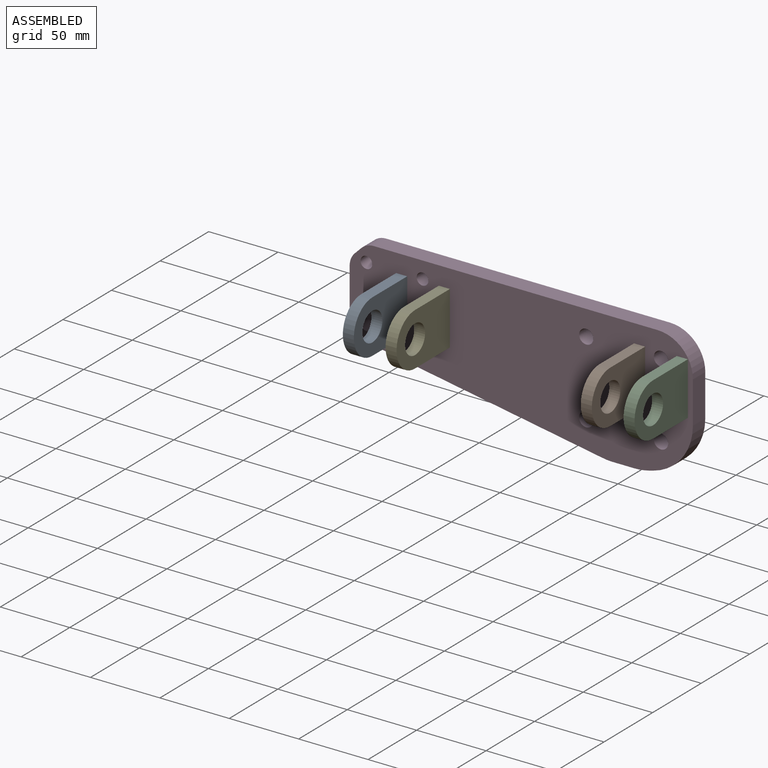
[diagram: assembled view]
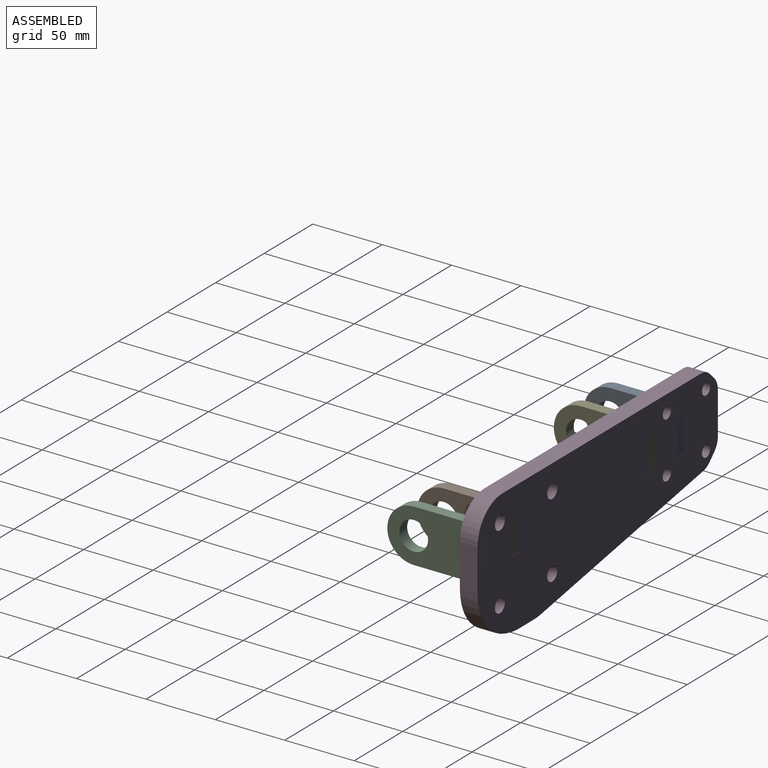
[diagram: assembled view, second angle]
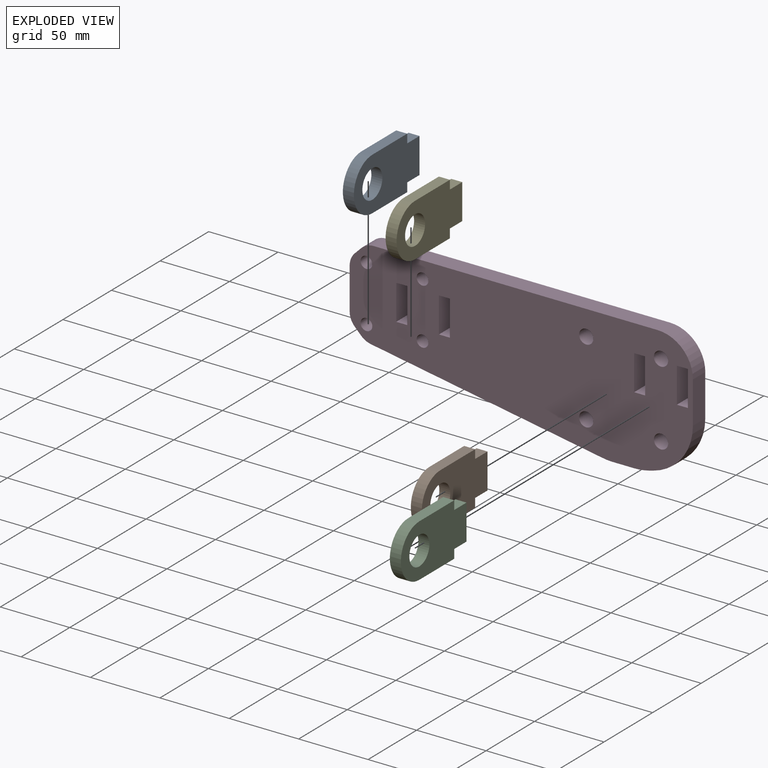
[diagram: exploded view]
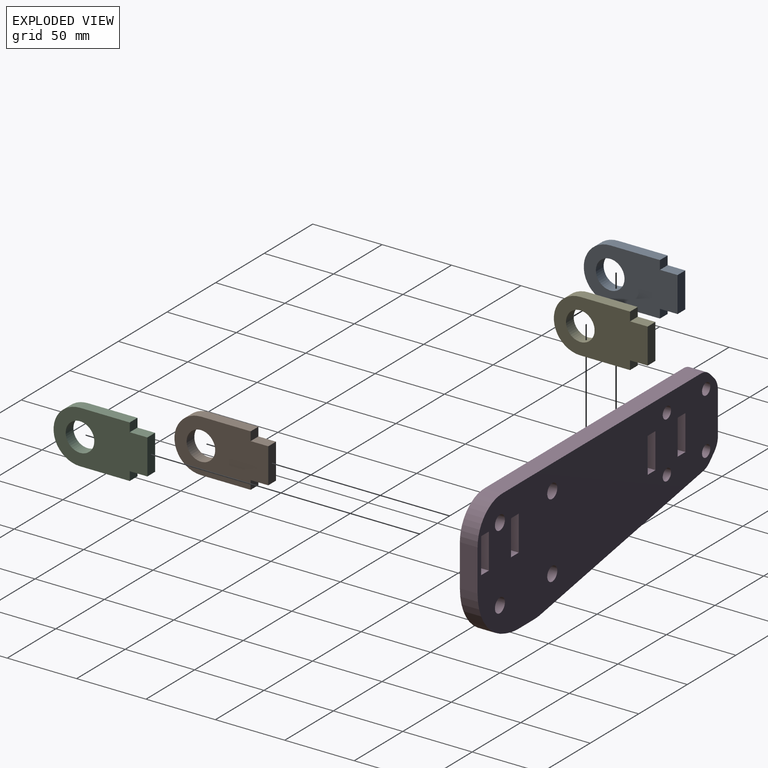
[diagram: exploded view, second angle]
ASSEMBLY  parts=5 mates=4
PART A: 11 faces, bbox 7.9x67.6x38.1 mm
  f0: plane 12.7x7.94mm, normal (0,0,-1), area 100.8mm2, adj f5,f6,f8,f10
  f1: plane 12.7x7.94mm, normal (0,0,1), area 100.8mm2, adj f5,f6,f8,f9
  f2: plane 35.84x7.94mm, normal (0,0,1), area 284.5mm2, adj f3,f5,f6,f9
  f3: cylinder r=19.05mm len=38.1mm, axis (-1,0,0), area 475mm2, adj f2,f4,f5,f6
  f4: plane 35.84x7.94mm, normal (0,0,-1), area 284.5mm2, adj f3,f5,f6,f10
  f5: plane 67.59x38.1mm, normal (1,0,0), area 1924.2mm2, adj f0,f1,f2,f3,f4,f7,f8,f9
  f6: plane 67.59x38.1mm, normal (-1,0,0), area 1924.2mm2, adj f0,f1,f2,f3,f4,f7,f8,f9
  f7: cylinder r=10.31mm len=20.63mm, axis (-1,0,0), area 514.3mm2, adj f5,f6
  f8: plane 25.4x7.94mm, normal (0,1,0), area 201.6mm2, adj f0,f1,f5,f6
  f9: plane 7.94x6.35mm, normal (0,1,0), area 50.4mm2, adj f1,f2,f5,f6
  f10: plane 7.94x6.35mm, normal (0,1,0), area 50.4mm2, adj f0,f4,f5,f6
PART B: same geometry as A
PART C: same geometry as A
PART D: 44 faces, bbox 247.4x12.7x94.5 mm
  f0: plane 247.35x94.53mm, normal (0,-1,0), area 18351.1mm2, adj f2,f3,f4,f5,f6,f7,f8,f9
  f1: plane 247.35x94.53mm, normal (0,1,0), area 18351.1mm2, adj f2,f3,f4,f5,f6,f7,f8,f9
  f2: plane 204.6x12.74mm, normal (0,0,1), area 2607mm2, adj f0,f1,f4,f43
  f3: plane 12.74x2.84mm, normal (0.25,0,-0.97), area 37.3mm2, adj f0,f1,f14,f42
  f4: cylinder r=12.7mm len=12.74mm, axis (0,1,0), area 127.1mm2, adj f0,f1,f2,f5
  f5: plane 12.74x4.66mm, normal (-0.71,0,0.71), area 83.9mm2, adj f0,f1,f4,f6
  f6: cylinder r=12.7mm len=12.74mm, axis (0,1,0), area 127.1mm2, adj f0,f1,f5,f7
  f7: plane 29.89x12.74mm, normal (-1,0,0), area 380.9mm2, adj f0,f1,f6,f8
  f8: cylinder r=12.7mm len=12.74mm, axis (0,1,0), area 127.1mm2, adj f0,f1,f7,f9
  f9: plane 12.74x4.66mm, normal (-0.71,0,-0.71), area 83.9mm2, adj f0,f1,f8,f10
  f10: cylinder r=12.7mm len=12.74mm, axis (0,1,0), area 98.9mm2, adj f0,f1,f9,f11
  f11: plane 167.08x29.46mm, normal (-0.17,0,-0.98), area 2161.8mm2, adj f0,f1,f10,f12
  f12: cylinder r=43.18mm len=12.74mm, axis (0,1,0), area 96.6mm2, adj f0,f1,f11,f13
  f13: plane 15.24x12.74mm, normal (0,0,-1), area 194.2mm2, adj f0,f1,f12,f14
  f14: cylinder r=43.18mm len=12.74mm, axis (0,1,0), area 138.8mm2, adj f0,f1,f3,f13
  f15: cylinder r=4.24mm len=12.74mm, axis (0,1,0), area 339.6mm2, adj f0,f1
  f16: cylinder r=4.24mm len=12.74mm, axis (0,1,0), area 339.6mm2, adj f0,f1
  f17: cylinder r=5.13mm len=12.74mm, axis (0,1,0), area 410.8mm2, adj f0,f1
  f18: cylinder r=5.13mm len=12.74mm, axis (0,1,0), area 410.8mm2, adj f0,f1
  f19: cylinder r=5.13mm len=12.74mm, axis (0,1,0), area 410.8mm2, adj f0,f1
  f20: cylinder r=5.13mm len=12.74mm, axis (0,1,0), area 410.8mm2, adj f0,f1
  f21: cylinder r=4.24mm len=12.74mm, axis (0,1,0), area 339.6mm2, adj f0,f1
  f22: cylinder r=4.24mm len=12.74mm, axis (0,1,0), area 339.6mm2, adj f0,f1
  f23: plane 25.4x12.74mm, normal (-1,0,0), area 323.6mm2, adj f0,f1,f24,f28
  f24: plane 12.74x7.93mm, normal (0,0,-1), area 101mm2, adj f0,f1,f23,f25
  f25: plane 12.74x12.71mm, normal (1,0,0), area 161.9mm2, adj f0,f1,f24,f26
  f26: cylinder r=11.43mm len=12.74mm, axis (0,-1,0), area 1.4mm2, adj f0,f1,f25,f27
  f27: plane 12.74x12.58mm, normal (1,0,0), area 160.3mm2, adj f0,f1,f26,f28
  f28: plane 12.74x7.93mm, normal (0,0,1), area 101mm2, adj f0,f1,f23,f27
  f29: plane 25.4x12.74mm, normal (-1,0,0), area 323.7mm2, adj f0,f1,f30,f32
  f30: plane 12.74x7.92mm, normal (0,0,-1), area 101mm2, adj f0,f1,f29,f31
  f31: plane 25.4x12.74mm, normal (1,0,0), area 323.7mm2, adj f0,f1,f30,f32
  f32: plane 12.74x7.92mm, normal (0,0,1), area 101mm2, adj f0,f1,f29,f31
  f33: plane 25.4x12.74mm, normal (1,0,0), area 323.6mm2, adj f0,f1,f34,f36
  f34: plane 12.74x7.93mm, normal (0,0,1), area 101mm2, adj f0,f1,f33,f35
  f35: plane 25.4x12.74mm, normal (-1,0,0), area 323.6mm2, adj f0,f1,f34,f36
  f36: plane 12.74x7.93mm, normal (0,0,-1), area 101mm2, adj f0,f1,f33,f35
  f37: plane 25.4x12.74mm, normal (-1,0,0), area 323.6mm2, adj f0,f1,f38,f40
  f38: plane 12.74x7.92mm, normal (0,0,-1), area 101mm2, adj f0,f1,f37,f39
  f39: plane 25.4x12.74mm, normal (1,0,0), area 323.6mm2, adj f0,f1,f38,f40
  f40: plane 12.74x7.92mm, normal (0,0,1), area 101mm2, adj f0,f1,f37,f39
  f41: plane 30.12x12.74mm, normal (1,0,0), area 383.7mm2, adj f0,f1,f42,f43
  f42: cylinder r=38.1mm len=36.93mm, axis (0,-1,0), area 641.8mm2, adj f0,f1,f3,f41
  f43: cylinder r=25.4mm len=25.4mm, axis (0,1,0), area 508.4mm2, adj f0,f1,f2,f41
PART E: same geometry as A
PLACE A t=(28.93,162.88,93.9)mm fixed
PLACE B t=(200.37,162.88,93.97)mm fixed
PLACE C t=(231.17,162.92,93.97)mm fixed
PLACE D t=(-513.18,66.59,-56.36)mm fixed
PLACE E t=(59.72,162.88,93.9)mm fixed
MATE planar C.f8 <-> D.f1  axis (0,1,0) through (231.17,78.83,149.74)mm
MATE planar A.f9 <-> D.f0  axis (0,1,0) through (36.87,66.09,149.67)mm
MATE planar E.f9 <-> D.f0  axis (0,1,0) through (67.65,66.09,149.67)mm
MATE planar B.f9 <-> D.f0  axis (0,1,0) through (208.31,66.09,149.74)mm
